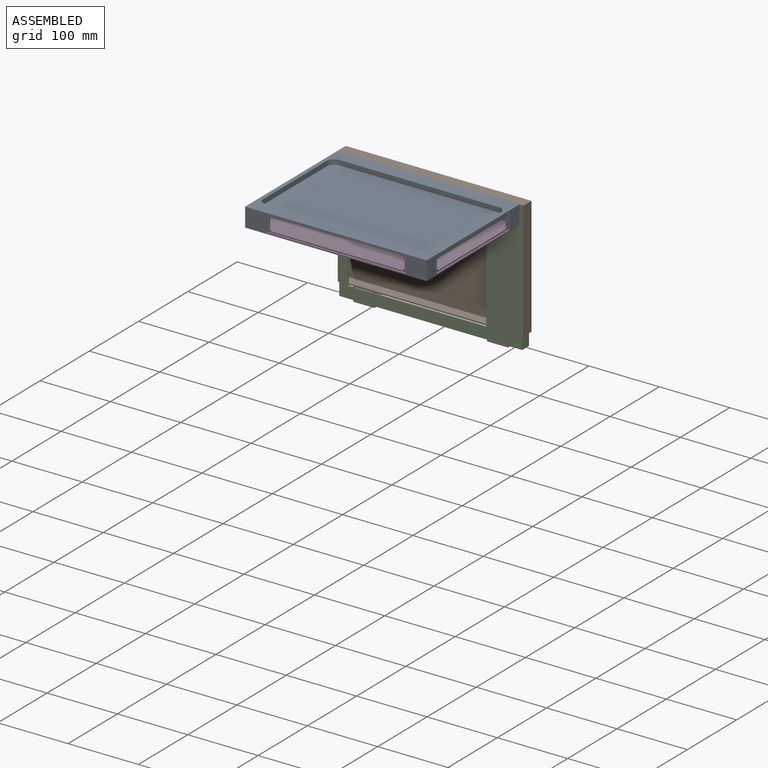
[diagram: assembled view]
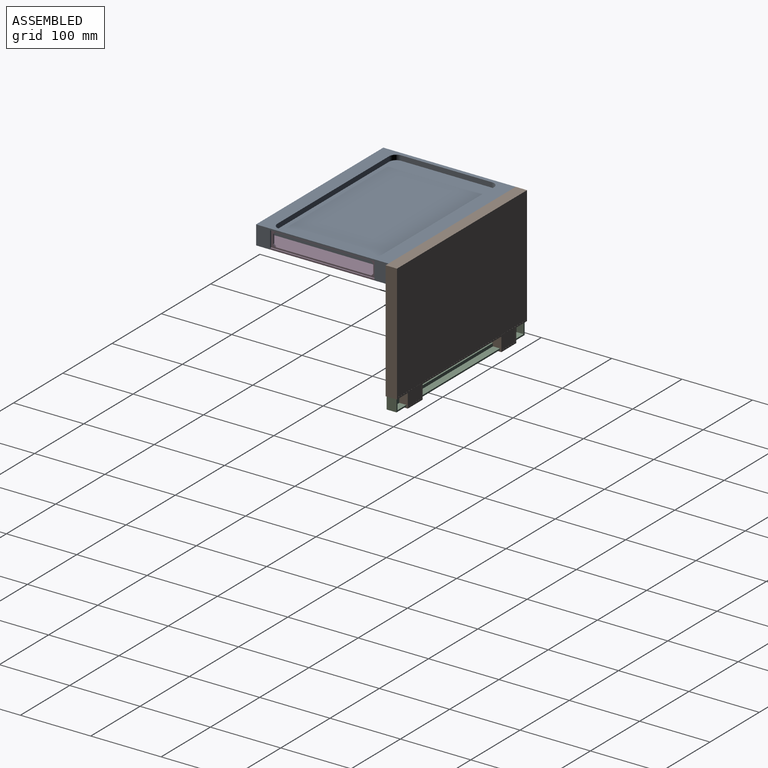
[diagram: assembled view, second angle]
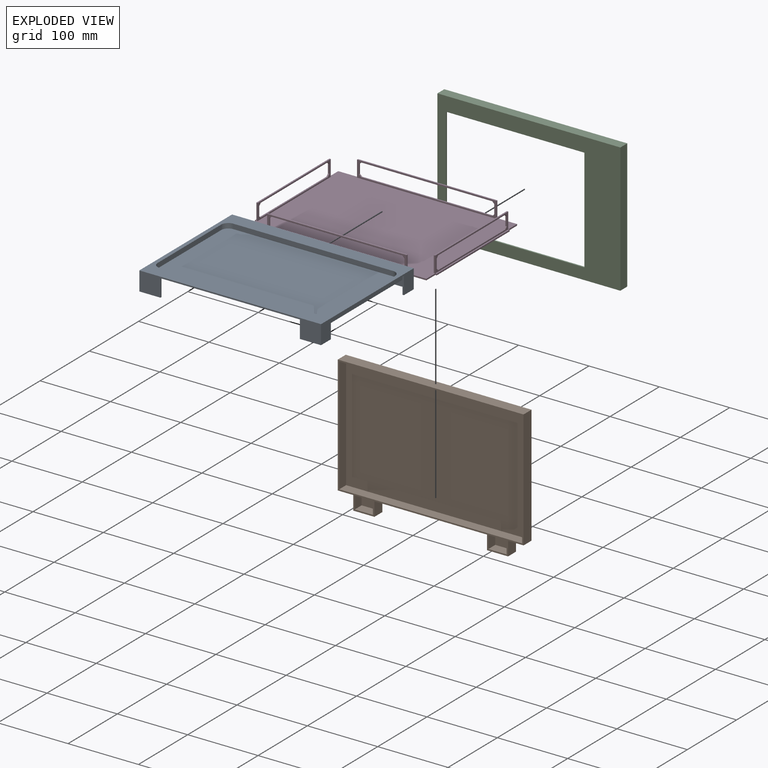
[diagram: exploded view]
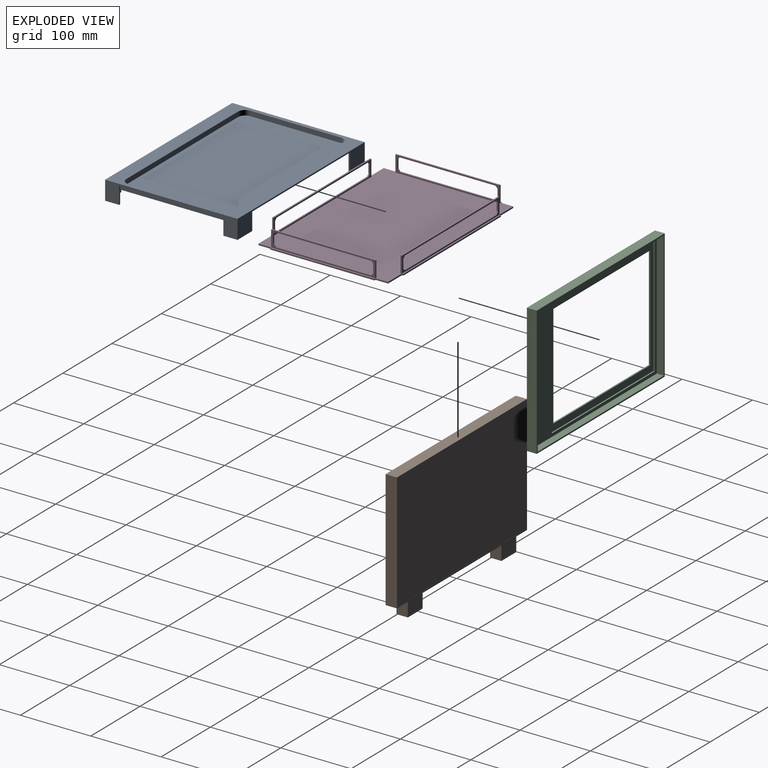
[diagram: exploded view, second angle]
ASSEMBLY  parts=4 mates=3
PART A: 40 faces, bbox 258.2x188.2x27 mm
  f0: plane 25x2mm, normal (1,0,0), area 50mm2, adj f1,f5,f6,f25
  f1: plane 258.2x27mm, normal (0,1,0), area 2016.4mm2, adj f0,f2,f6,f7,f8,f12,f13,f25
  f2: plane 188.2x27mm, normal (-1,0,0), area 1376.4mm2, adj f1,f3,f6,f7,f14,f15,f19,f25
  f3: plane 25x2mm, normal (0,-1,0), area 50mm2, adj f2,f4,f6,f25
  f4: plane 25x18mm, normal (1,0,0), area 450mm2, adj f3,f5,f6,f25
  f5: plane 28x25mm, normal (0,-1,0), area 700mm2, adj f0,f4,f6,f25
  f6: plane 30x20mm, normal (0,0,-1), area 96mm2, adj f0,f1,f2,f3,f4,f5
  f7: plane 258.2x188.2mm, normal (0,0,1), area 11876.1mm2, adj f1,f2,f12,f15,f31,f32,f33,f34
  f8: plane 25x2mm, normal (-1,0,0), area 50mm2, adj f1,f9,f13,f25
  f9: plane 28x25mm, normal (0,-1,0), area 700mm2, adj f8,f10,f13,f25
  f10: plane 25x18mm, normal (-1,0,0), area 450mm2, adj f9,f11,f13,f25
  f11: plane 25x2mm, normal (0,-1,0), area 50mm2, adj f10,f12,f13,f25
  f12: plane 188.2x27mm, normal (1,0,0), area 1376.4mm2, adj f1,f7,f11,f13,f15,f22,f24,f25
  f13: plane 30x20mm, normal (0,0,-1), area 96mm2, adj f1,f8,f9,f10,f11,f12
  f14: plane 25x2mm, normal (0,1,0), area 50mm2, adj f2,f18,f19,f25
  f15: plane 258.2x27mm, normal (0,-1,0), area 2016.4mm2, adj f2,f7,f12,f16,f19,f21,f24,f25
  f16: plane 25x2mm, normal (1,0,0), area 50mm2, adj f15,f17,f19,f25
  f17: plane 28x25mm, normal (0,1,0), area 700mm2, adj f16,f18,f19,f25
  f18: plane 25x18mm, normal (1,0,0), area 450mm2, adj f14,f17,f19,f25
  f19: plane 30x20mm, normal (0,0,-1), area 96mm2, adj f2,f14,f15,f16,f17,f18
  f20: plane 28x25mm, normal (0,1,0), area 700mm2, adj f21,f23,f24,f25
  f21: plane 25x2mm, normal (-1,0,0), area 50mm2, adj f15,f20,f24,f25
  f22: plane 25x2mm, normal (0.01,1,0), area 50mm2, adj f12,f23,f24,f25
  f23: plane 25x18.03mm, normal (-1,0,0), area 450.7mm2, adj f20,f22,f24,f25
  f24: plane 30x20.03mm, normal (0,0,-1), area 96mm2, adj f12,f15,f20,f21,f22,f23
  f25: plane 258.2x188.2mm, normal (0,0,-1), area 9806.2mm2, adj f0,f1,f2,f3,f4,f5,f8,f9
  f26: plane 251x153mm, normal (0,0,-1), area 38403mm2, adj f27,f28,f29,f30
  f27: plane 251x7mm, normal (0,1,0), area 1757mm2, adj f25,f26,f28,f30
  f28: plane 153x7mm, normal (1,0,0), area 1071mm2, adj f25,f26,f27,f29
  f29: plane 251x7mm, normal (0,-1,0), area 1757mm2, adj f25,f26,f28,f30
  f30: plane 153x7mm, normal (-1,0,0), area 1071mm2, adj f25,f26,f27,f29
  f31: cylinder r=10mm len=10mm, axis (0,0,1), area 110mm2, adj f7,f32,f38,f39
  f32: plane 227x7mm, normal (0,1,0), area 1589mm2, adj f7,f31,f33,f39
  f33: cylinder r=10mm len=10mm, axis (0,0,1), area 110mm2, adj f7,f32,f34,f39
  f34: plane 129x7mm, normal (-1,0,0), area 903mm2, adj f7,f33,f35,f39
  f35: cylinder r=10mm len=10mm, axis (0,0,1), area 110mm2, adj f7,f34,f36,f39
  f36: plane 227x7mm, normal (0,-1,0), area 1589mm2, adj f7,f35,f37,f39
  f37: cylinder r=10mm len=10mm, axis (0,0,1), area 110mm2, adj f7,f36,f38,f39
  f38: plane 129x7mm, normal (1,0,0), area 903mm2, adj f7,f31,f37,f39
  f39: plane 247x149mm, normal (0,0,1), area 36717.2mm2, adj f31,f32,f33,f34,f35,f36,f37,f38
PART B: 44 faces, bbox 264x16.1x188.2 mm
  f0: plane 26x14mm, normal (0,0,1), area 364mm2, adj f1,f3,f37,f43
  f1: plane 18x14mm, normal (1,0,0), area 252mm2, adj f0,f2,f37,f43
  f2: plane 26x14mm, normal (0,0,-1), area 364mm2, adj f1,f3,f37,f43
  f3: plane 18x14mm, normal (-1,0,0), area 252mm2, adj f0,f2,f37,f43
  f4: plane 25.92x14mm, normal (0,0,1), area 362.8mm2, adj f5,f7,f37,f41
  f5: plane 18x14mm, normal (1,0,0), area 252mm2, adj f4,f6,f37,f41
  f6: plane 25.92x14mm, normal (0,0,-1), area 362.8mm2, adj f5,f7,f37,f41
  f7: plane 18x14mm, normal (-1,0,0), area 252mm2, adj f4,f6,f37,f41
  f8: plane 260x14mm, normal (0,0,1), area 3640mm2, adj f9,f11,f37,f39
  f9: plane 164.2x14mm, normal (1,0,0), area 2298.8mm2, adj f8,f10,f37,f39
  f10: plane 260x14mm, normal (0,0,-1), area 3640mm2, adj f9,f11,f37,f39
  f11: plane 164.2x14mm, normal (-1,0,0), area 2298.8mm2, adj f8,f10,f37,f39
  f12: plane 26x0.1mm, normal (0,0,1), area 2.6mm2, adj f13,f35,f36,f42
  f13: plane 18x0.1mm, normal (1,0,0), area 1.8mm2, adj f12,f14,f36,f42
  f14: plane 26x0.1mm, normal (0,0,-1), area 2.6mm2, adj f13,f35,f36,f42
  f15: plane 25.92x0.1mm, normal (0,0,1), area 2.6mm2, adj f16,f32,f36,f40
  f16: plane 18x0.1mm, normal (1,0,0), area 1.8mm2, adj f15,f17,f36,f40
  f17: plane 25.92x0.1mm, normal (0,0,-1), area 2.6mm2, adj f16,f32,f36,f40
  f18: plane 264x16.1mm, normal (0,0,1), area 4250.4mm2, adj f19,f33,f36,f37
  f19: plane 168.2x16.1mm, normal (-1,0,0), area 2708mm2, adj f18,f20,f36,f37
  f20: plane 22x16.1mm, normal (0,0,-1), area 354.2mm2, adj f19,f21,f36,f37
  f21: plane 20x16.1mm, normal (-1,0,0), area 322mm2, adj f20,f22,f36,f37
  f22: plane 30x16.1mm, normal (0,0,-1), area 483mm2, adj f21,f23,f36,f37
  f23: plane 20x16.1mm, normal (1,0,0), area 322mm2, adj f22,f24,f36,f37
  f24: plane 160x16.1mm, normal (0,0,-1), area 2576mm2, adj f23,f25,f36,f37
  f25: plane 20x16.1mm, normal (-1,0,0), area 322mm2, adj f24,f26,f36,f37
  f26: plane 30x16.1mm, normal (0,0,-1), area 483mm2, adj f25,f27,f36,f37
  f27: plane 20x16.1mm, normal (1,0,0), area 322mm2, adj f26,f28,f36,f37
  f28: plane 22x16.1mm, normal (0,0,-1), area 354.2mm2, adj f27,f33,f36,f37
  f29: plane 260x0.1mm, normal (0,0,1), area 26mm2, adj f30,f34,f36,f38
  f30: plane 164.2x0.1mm, normal (1,0,0), area 16.4mm2, adj f29,f31,f36,f38
  f31: plane 260x0.1mm, normal (0,0,-1), area 26mm2, adj f30,f34,f36,f38
  f32: plane 18x0.1mm, normal (-1,0,0), area 1.8mm2, adj f15,f17,f36,f40
  f33: plane 168.2x16.1mm, normal (1,0,0), area 2708mm2, adj f18,f28,f36,f37
  f34: plane 164.2x0.1mm, normal (-1,0,0), area 16.4mm2, adj f29,f31,f36,f38
  f35: plane 18x0.1mm, normal (-1,0,0), area 1.8mm2, adj f12,f14,f36,f42
  f36: plane 264x188.2mm, normal (0,1,0), area 1978.3mm2, adj f12,f13,f14,f15,f16,f17,f18,f19
  f37: plane 264x188.2mm, normal (0,-1,0), area 1978.3mm2, adj f0,f1,f2,f3,f4,f5,f6,f7
  f38: plane 260x164.2mm, normal (0,1,0), area 42692mm2, adj f29,f30,f31,f34
  f39: plane 260x164.2mm, normal (0,-1,0), area 42692mm2, adj f8,f9,f10,f11
  f40: plane 25.92x18mm, normal (0,1,0), area 466.5mm2, adj f15,f16,f17,f32
  f41: plane 25.92x18mm, normal (0,-1,0), area 466.5mm2, adj f4,f5,f6,f7
  f42: plane 26x18mm, normal (0,1,0), area 468mm2, adj f12,f13,f14,f35
  f43: plane 26x18mm, normal (0,-1,0), area 468mm2, adj f0,f1,f2,f3
PART C: 20 faces, bbox 260x14x184 mm
  f0: plane 184x14mm, normal (-1,0,0), area 2576mm2, adj f1,f7,f8,f9
  f1: plane 260x14mm, normal (0,0,-1), area 3640mm2, adj f0,f2,f8,f9
  f2: plane 184x14mm, normal (1,0,0), area 2576mm2, adj f1,f7,f8,f9
  f3: plane 256x10mm, normal (0,0,1), area 2560mm2, adj f4,f6,f8,f14
  f4: plane 180x10mm, normal (1,0,0), area 1800mm2, adj f3,f5,f8,f14
  f5: plane 256x10mm, normal (0,0,-1), area 2560mm2, adj f4,f6,f8,f14
  f6: plane 180x10mm, normal (-1,0,0), area 1800mm2, adj f3,f5,f8,f14
  f7: plane 260x14mm, normal (0,0,1), area 3640mm2, adj f0,f2,f8,f9
  f8: plane 260x184mm, normal (0,1,0), area 1760mm2, adj f0,f1,f2,f3,f4,f5,f6,f7
  f9: plane 260x184mm, normal (0,-1,0), area 18849mm2, adj f0,f1,f2,f7,f15,f16,f17,f18
  f10: plane 208.88x2mm, normal (0,0,1), area 417.8mm2, adj f11,f13,f14,f19
  f11: plane 167.12x2mm, normal (1,0,0), area 334.2mm2, adj f10,f12,f14,f19
  f12: plane 208.88x2mm, normal (0,0,-1), area 417.8mm2, adj f11,f13,f14,f19
  f13: plane 167.12x2mm, normal (-1,0,0), area 334.2mm2, adj f10,f12,f14,f19
  f14: plane 256x180mm, normal (0,1,0), area 11172mm2, adj f3,f4,f5,f6,f10,f11,f12,f13
  f15: plane 196.61x2mm, normal (0,0,1), area 393.2mm2, adj f9,f16,f18,f19
  f16: plane 147.46x2mm, normal (1,0,0), area 294.9mm2, adj f9,f15,f17,f19
  f17: plane 196.61x2mm, normal (0,0,-1), area 393.2mm2, adj f9,f16,f18,f19
  f18: plane 147.46x2mm, normal (-1,0,0), area 294.9mm2, adj f9,f15,f17,f19
  f19: plane 208.88x167.12mm, normal (0,1,0), area 5917mm2, adj f10,f11,f12,f13,f15,f16,f17,f18
PART D: 78 faces, bbox 258.2x188.2x25 mm
  f0: plane 254.2x184.2mm, normal (0,0,1), area 45438.1mm2, adj f4,f8,f9,f13,f14,f18,f19,f23
  f1: plane 148.2x2mm, normal (0,0,1), area 296.4mm2, adj f10,f11,f12,f38
  f2: plane 198.2x2mm, normal (0,0,1), area 396.4mm2, adj f15,f16,f17,f31
  f3: plane 148.2x2mm, normal (0,0,1), area 296.4mm2, adj f20,f21,f22,f44
  f4: plane 28x2mm, normal (0,1,0), area 56mm2, adj f0,f5,f23,f25
  f5: plane 2x2mm, normal (1,0,0), area 4mm2, adj f4,f6,f24,f25
  f6: plane 198.2x2mm, normal (0,1,0), area 396.4mm2, adj f5,f7,f24,f25
  f7: plane 2x2mm, normal (-1,0,0), area 4mm2, adj f6,f8,f24,f25
  f8: plane 28x2mm, normal (0,1,0), area 56mm2, adj f0,f7,f9,f25
  f9: plane 18x2mm, normal (-1,0,0), area 36mm2, adj f0,f8,f10,f25
  f10: plane 2x2mm, normal (0,1,0), area 4mm2, adj f1,f9,f11,f25
  f11: plane 148.2x2mm, normal (-1,0,0), area 296.4mm2, adj f1,f10,f12,f25
  f12: plane 2x2mm, normal (0,-1,0), area 4mm2, adj f1,f11,f13,f25
  f13: plane 18x2mm, normal (-1,0,0), area 36mm2, adj f0,f12,f14,f25
  f14: plane 28x2mm, normal (0,-1,0), area 56mm2, adj f0,f13,f15,f25
  f15: plane 2x2mm, normal (-1,0,0), area 4mm2, adj f2,f14,f16,f25
  f16: plane 198.2x2mm, normal (0,-1,0), area 396.4mm2, adj f2,f15,f17,f25
  f17: plane 2x2mm, normal (1,0,0), area 4mm2, adj f2,f16,f18,f25
  f18: plane 28x2mm, normal (0,-1,0), area 56mm2, adj f0,f17,f19,f25
  f19: plane 18.03x2mm, normal (1,0,0), area 36.1mm2, adj f0,f18,f20,f25
  f20: plane 2x2mm, normal (-0.01,-1,0), area 4mm2, adj f3,f19,f21,f25
  f21: plane 148.2x2mm, normal (1,0,0), area 296.4mm2, adj f3,f20,f22,f25
  f22: plane 2x2mm, normal (0,1,0), area 4mm2, adj f3,f21,f23,f25
  f23: plane 18x2mm, normal (1,0,0), area 36mm2, adj f0,f4,f22,f25
  f24: plane 198.2x2mm, normal (0,0,1), area 396.4mm2, adj f5,f6,f7,f27
  f25: plane 258.2x188.2mm, normal (0,0,-1), area 48209.2mm2, adj f4,f5,f6,f7,f8,f9,f10,f11
  f26: plane 23x2mm, normal (1,0,0), area 46mm2, adj f0,f27,f29,f30
  f27: plane 198.2x23mm, normal (0,1,0), area 924.8mm2, adj f24,f26,f28,f30,f62,f63,f64,f65
  f28: plane 23x2mm, normal (-1,0,0), area 46mm2, adj f0,f27,f29,f30
  f29: plane 198.2x23mm, normal (0,-1,0), area 924.8mm2, adj f0,f26,f28,f30,f62,f63,f64,f65
  f30: plane 198.2x2mm, normal (0,0,1), area 396.4mm2, adj f26,f27,f28,f29
  f31: plane 198.2x23mm, normal (0,-1,0), area 924.8mm2, adj f2,f32,f34,f35,f46,f47,f48,f49
  f32: plane 23x2mm, normal (1,0,0), area 46mm2, adj f0,f31,f33,f35
  f33: plane 198.2x23mm, normal (0,1,0), area 924.8mm2, adj f0,f32,f34,f35,f46,f47,f48,f49
  f34: plane 23x2mm, normal (-1,0,0), area 46mm2, adj f0,f31,f33,f35
  f35: plane 198.2x2mm, normal (0,0,1), area 396.4mm2, adj f31,f32,f33,f34
  f36: plane 148.2x23mm, normal (1,0,0), area 724.8mm2, adj f0,f37,f39,f40,f54,f55,f56,f57
  f37: plane 23x2mm, normal (0,1,0), area 46mm2, adj f0,f36,f38,f40
  f38: plane 148.2x23mm, normal (-1,0,0), area 724.8mm2, adj f1,f37,f39,f40,f54,f55,f56,f57
  f39: plane 23x2mm, normal (0,-1,0), area 46mm2, adj f0,f36,f38,f40
  f40: plane 148.2x2mm, normal (0,0,1), area 296.4mm2, adj f36,f37,f38,f39
  f41: plane 23x2mm, normal (0,1,0), area 46mm2, adj f0,f42,f44,f45
  f42: plane 148.17x23mm, normal (-1,0,0), area 724.7mm2, adj f0,f41,f43,f45,f70,f71,f72,f73
  f43: plane 23x2mm, normal (0,-1,0), area 46mm2, adj f0,f42,f44,f45
  f44: plane 148.17x23mm, normal (1,0,0), area 724.7mm2, adj f3,f41,f43,f45,f70,f71,f72,f73
  f45: plane 148.17x2mm, normal (0,0,1), area 296.3mm2, adj f41,f42,f43,f44
  f46: plane 3x3mm, normal (-0.71,0,-0.71), area 8.5mm2, adj f31,f33,f47,f53
  f47: plane 186.2x2mm, normal (0,0,-1), area 372.4mm2, adj f31,f33,f46,f48
  f48: plane 3x3mm, normal (0.71,0,-0.71), area 8.5mm2, adj f31,f33,f47,f49
  f49: plane 13x2mm, normal (1,0,0), area 26mm2, adj f31,f33,f48,f50
  f50: plane 3x3mm, normal (0.71,0,0.71), area 8.5mm2, adj f31,f33,f49,f51
  f51: plane 186.2x2mm, normal (0,0,1), area 372.4mm2, adj f31,f33,f50,f52
  f52: plane 3x3mm, normal (-0.71,0,0.71), area 8.5mm2, adj f31,f33,f51,f53
  f53: plane 13x2mm, normal (-1,0,0), area 26mm2, adj f31,f33,f46,f52
  f54: plane 3x3mm, normal (0,0.71,-0.71), area 8.5mm2, adj f36,f38,f55,f61
  f55: plane 136.2x2mm, normal (0,0,-1), area 272.4mm2, adj f36,f38,f54,f56
  f56: plane 3x3mm, normal (0,-0.71,-0.71), area 8.5mm2, adj f36,f38,f55,f57
  f57: plane 13x2mm, normal (0,-1,0), area 26mm2, adj f36,f38,f56,f58
  f58: plane 3x3mm, normal (0,-0.71,0.71), area 8.5mm2, adj f36,f38,f57,f59
  f59: plane 136.2x2mm, normal (0,0,1), area 272.4mm2, adj f36,f38,f58,f60
  f60: plane 3x3mm, normal (0,0.71,0.71), area 8.5mm2, adj f36,f38,f59,f61
  f61: plane 13x2mm, normal (0,1,0), area 26mm2, adj f36,f38,f54,f60
  f62: plane 3x3mm, normal (0.71,0,-0.71), area 8.5mm2, adj f27,f29,f63,f69
  f63: plane 186.2x2mm, normal (0,0,-1), area 372.4mm2, adj f27,f29,f62,f64
  f64: plane 3x3mm, normal (-0.71,0,-0.71), area 8.5mm2, adj f27,f29,f63,f65
  f65: plane 13x2mm, normal (-1,0,0), area 26mm2, adj f27,f29,f64,f66
  f66: plane 3x3mm, normal (-0.71,0,0.71), area 8.5mm2, adj f27,f29,f65,f67
  f67: plane 186.2x2mm, normal (0,0,1), area 372.4mm2, adj f27,f29,f66,f68
  f68: plane 3x3mm, normal (0.71,0,0.71), area 8.5mm2, adj f27,f29,f67,f69
  f69: plane 13x2mm, normal (1,0,0), area 26mm2, adj f27,f29,f62,f68
  f70: plane 3x3mm, normal (0,-0.71,-0.71), area 8.5mm2, adj f42,f44,f71,f77
  f71: plane 136.17x2mm, normal (0,0,-1), area 272.3mm2, adj f42,f44,f70,f72
  f72: plane 3x3mm, normal (0,0.71,-0.71), area 8.5mm2, adj f42,f44,f71,f73
  f73: plane 13x2mm, normal (0,1,0), area 26mm2, adj f42,f44,f72,f74
  f74: plane 3x3mm, normal (0,0.71,0.71), area 8.5mm2, adj f42,f44,f73,f75
  f75: plane 136.17x2mm, normal (0,0,1), area 272.3mm2, adj f42,f44,f74,f76
  f76: plane 3x3mm, normal (0,-0.71,0.71), area 8.5mm2, adj f42,f44,f75,f77
  f77: plane 13x2mm, normal (0,-1,0), area 26mm2, adj f42,f44,f70,f76
PLACE A t=(18.05,11.6,-32.19)mm
PLACE B t=(2.17,106.1,-127.9)mm
PLACE C t=(1.56,106.1,-128.25)mm
PLACE D t=(25.58,12,-59.19)mm
MATE fastened B.f39 <-> C.f8  axis (0,-1,0) through (-109.05,120.1,-34.19)mm
MATE fastened B.f18 <-> A.f7  axis (0,0,1) through (-111.05,106.1,-32.19)mm
MATE fastened A.f19 <-> D.f25  axis (0,0,-1) through (-109.05,-80.1,-59.19)mm
